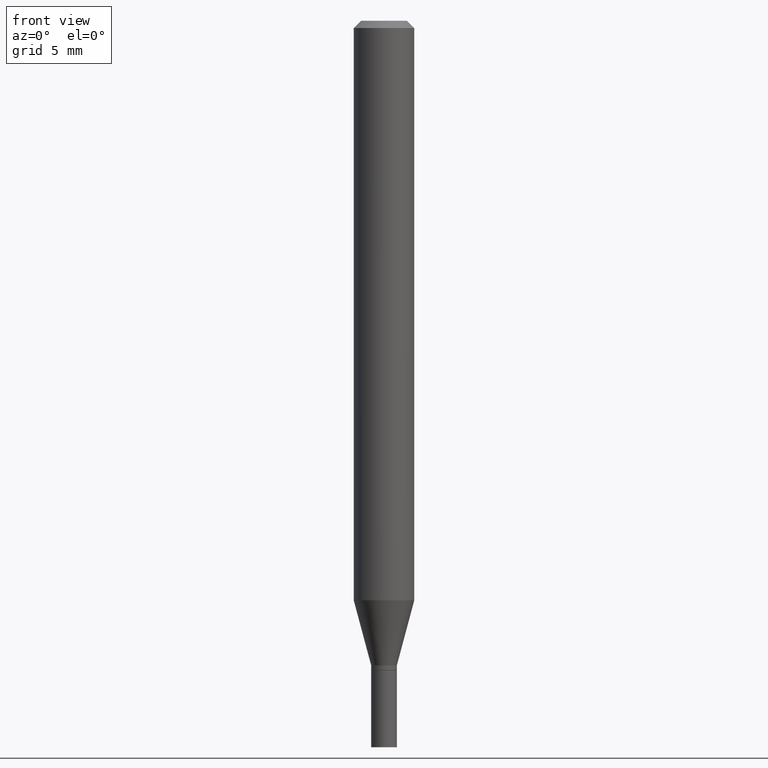
[diagram: clean part render]
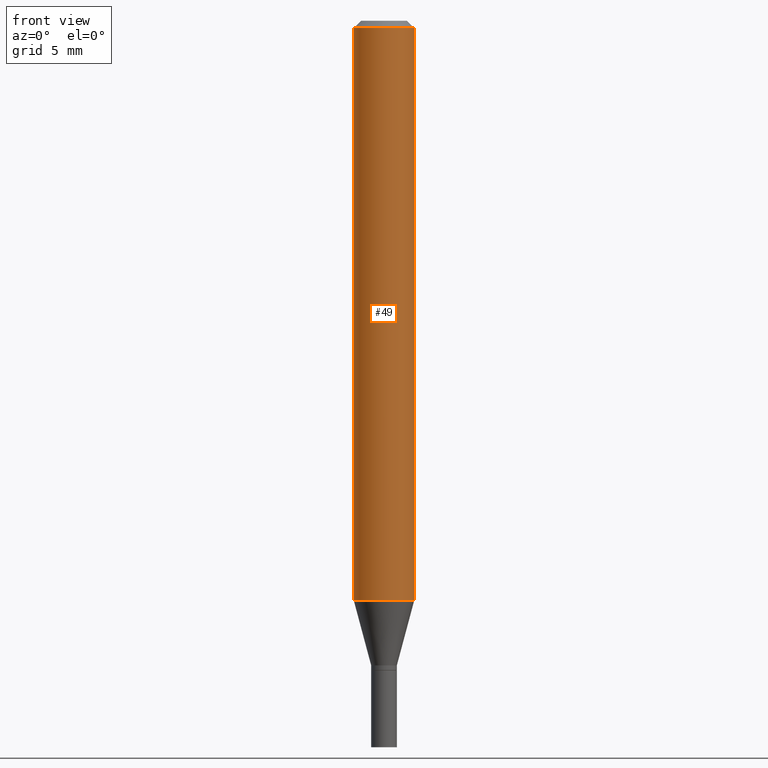
[diagram: same view with one face highlighted and labeled with its STEP entity id]
A machine part, front view. The second image highlights one B-rep face of the part: STEP entity #49.
In plain terms, the highlighted cylindrical surface (edge-blend (fillet) strip) has radius 1.5875 mm, axis along (-0, 0, 1).
Its self-contained STEP definition (entity closure, byte-faithful):
#14 = EDGE_CURVE ( 'NONE', #105, #390, #370, .T. ) ;
#24 = CYLINDRICAL_SURFACE ( 'NONE', #448, 0.06250000000000000000 ) ;
#44 = CIRCLE ( 'NONE', #255, 0.06250000000000000000 ) ;
#49 = ADVANCED_FACE ( 'NONE', ( #234 ), #24, .T. ) ;
#65 = VERTEX_POINT ( 'NONE', #305 ) ;
#68 = ORIENTED_EDGE ( 'NONE', *, *, #153, .F. ) ;
#86 = VECTOR ( 'NONE', #352, 39.37007874015748143 ) ;
#105 = VERTEX_POINT ( 'NONE', #346 ) ;
#116 = ORIENTED_EDGE ( 'NONE', *, *, #177, .T. ) ;
#140 = CARTESIAN_POINT ( 'NONE',  ( 0.000000000000000000, 0.000000000000000000, 0.000000000000000000 ) ) ;
#153 = EDGE_CURVE ( 'NONE', #192, #65, #44, .T. ) ;
#159 = EDGE_CURVE ( 'NONE', #105, #192, #212, .T. ) ;
#177 = EDGE_CURVE ( 'NONE', #390, #65, #397, .T. ) ;
#179 = DIRECTION ( 'NONE',  ( -2.445468806185136877E-29, 3.491481338843145188E-15, 1.000000000000000000 ) ) ;
#192 = VERTEX_POINT ( 'NONE', #222 ) ;
#199 = VECTOR ( 'NONE', #179, 39.37007874015748143 ) ;
#212 = LINE ( 'NONE', #248, #86 ) ;
#222 = CARTESIAN_POINT ( 'NONE',  ( -0.06250000000000000000, -1.671130787687032468E-15, -0.01499999999999999944 ) ) ;
#234 = FACE_OUTER_BOUND ( 'NONE', #278, .T. ) ;
#240 = CARTESIAN_POINT ( 'NONE',  ( 2.926360883044138788E-29, -4.178067774991542695E-15, -1.196646170927520458 ) ) ;
#248 = CARTESIAN_POINT ( 'NONE',  ( -0.06250000000000000000, 4.440892098500626162E-16, -3.074334431409316114E-30 ) ) ;
#255 = AXIS2_PLACEMENT_3D ( 'NONE', #454, #321, #462 ) ;
#260 = CARTESIAN_POINT ( 'NONE',  ( 0.06250000000000000000, -4.364351673553916694E-16, 3.047610484872459871E-30 ) ) ;
#268 = AXIS2_PLACEMENT_3D ( 'NONE', #240, #377, #342 ) ;
#278 = EDGE_LOOP ( 'NONE', ( #300, #340, #116, #68 ) ) ;
#300 = ORIENTED_EDGE ( 'NONE', *, *, #159, .F. ) ;
#305 = CARTESIAN_POINT ( 'NONE',  ( 0.06250000000000000000, -4.888073874380388472E-16, -0.01499999999999999944 ) ) ;
#321 = DIRECTION ( 'NONE',  ( -2.445468806185136597E-29, 3.491481338843145583E-15, 1.000000000000000000 ) ) ;
#340 = ORIENTED_EDGE ( 'NONE', *, *, #14, .T. ) ;
#342 = DIRECTION ( 'NONE',  ( 1.000000000000000000, -6.982962677686270655E-15, 0.000000000000000000 ) ) ;
#343 = DIRECTION ( 'NONE',  ( 1.000000000000000000, -6.982962677686266711E-15, 4.876176775795935793E-29 ) ) ;
#346 = CARTESIAN_POINT ( 'NONE',  ( -0.06250000000000000000, -3.733978565141479290E-15, -1.196646170927520458 ) ) ;
#352 = DIRECTION ( 'NONE',  ( -2.445468806185136877E-29, 3.491481338843145188E-15, 1.000000000000000000 ) ) ;
#370 = CIRCLE ( 'NONE', #268, 0.06250000000000000000 ) ;
#377 = DIRECTION ( 'NONE',  ( -2.445468806185136597E-29, 3.491481338843145583E-15, 1.000000000000000000 ) ) ;
#390 = VERTEX_POINT ( 'NONE', #395 ) ;
#395 = CARTESIAN_POINT ( 'NONE',  ( 0.06250000000000000000, -4.614502942346933576E-15, -1.196646170927520458 ) ) ;
#397 = LINE ( 'NONE', #260, #199 ) ;
#448 = AXIS2_PLACEMENT_3D ( 'NONE', #140, #455, #343 ) ;
#454 = CARTESIAN_POINT ( 'NONE',  ( 3.668203209277705088E-31, -5.237222008264718399E-17, -0.01499999999999999944 ) ) ;
#455 = DIRECTION ( 'NONE',  ( -2.445468806185136597E-29, 3.491481338843145583E-15, 1.000000000000000000 ) ) ;
#462 = DIRECTION ( 'NONE',  ( 1.000000000000000000, -6.982962677686266711E-15, 0.000000000000000000 ) ) ;